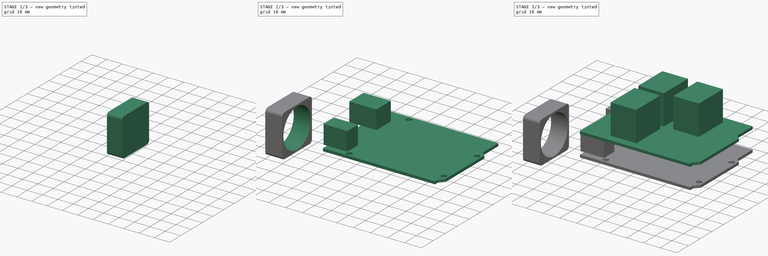
[diagram: build sequence overview — one tinted view per stage of 3, left to right]
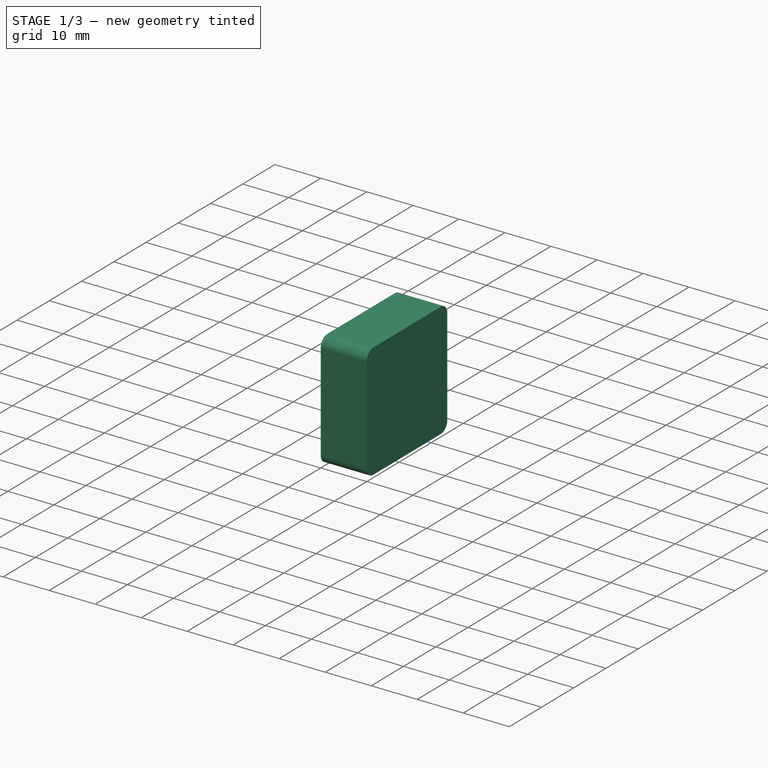
[diagram: stage 1 of 3 — iso view after this stage's code; geometry added in this stage tinted green]
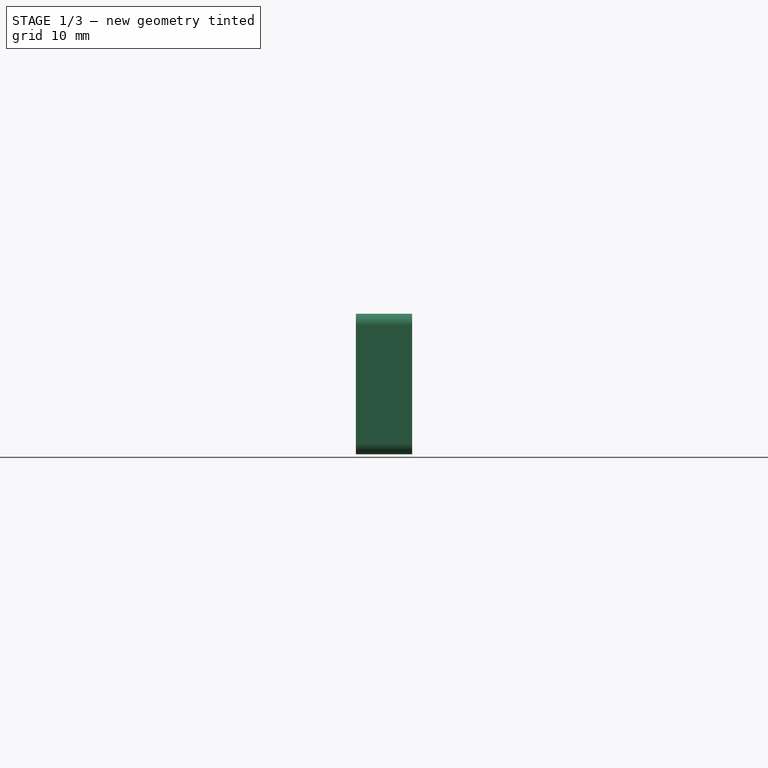
[diagram: stage 1 of 3 — front view after this stage's code; geometry added in this stage tinted green]
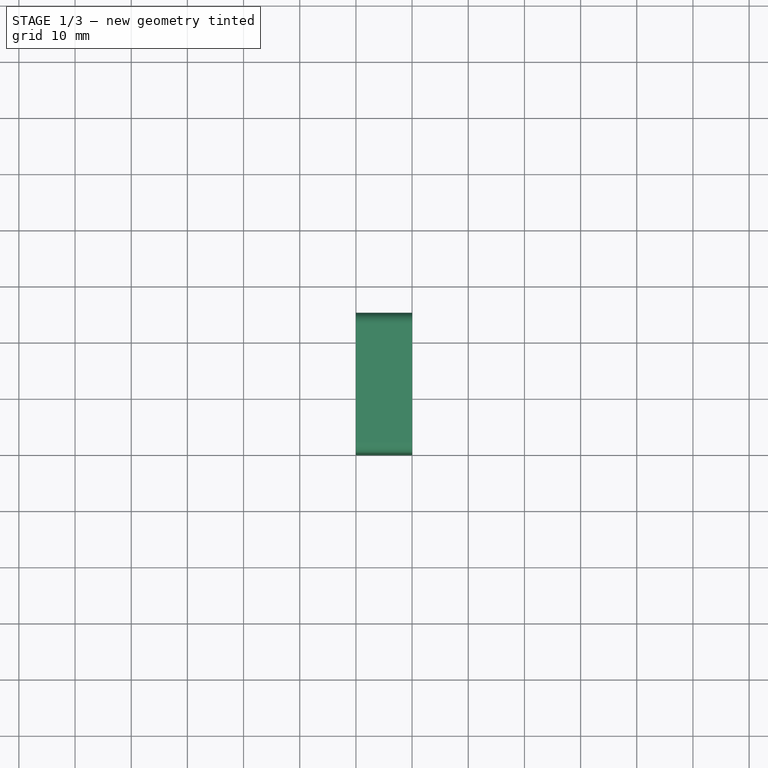
[diagram: stage 1 of 3 — top view after this stage's code; geometry added in this stage tinted green]
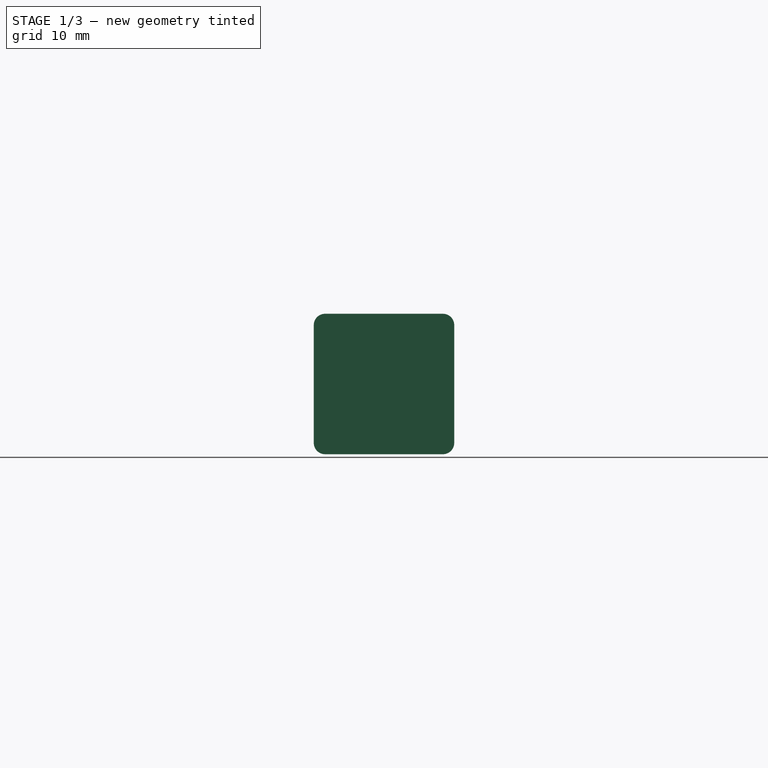
[diagram: stage 1 of 3 — right view after this stage's code; geometry added in this stage tinted green]
FCSTD DOCUMENT  (FreeCAD 1.0R39319 (Git))
Label: Utils
License: All rights reserved
LicenseURL: https://en.wikipedia.org/wiki/All_rights_reserved
objects: Sketcher::SketchObject×6, PartDesign::Pad×5, PartDesign::Body×2, PartDesign::Fillet×1, PartDesign::Pocket×1
note: 35 computed .brp shape members not serialized (recipe doc carries the construction recipe); baked Part::Feature solids carry a one-line shape summary decoded from their .brp

FEATURE [PartDesign::Body] Body  label="Board"
  AllowCompound = false
  Group = -> [Sketch,Pad,Sketch001,Pad001,Sketch002,Pad002,Sketch003,Pad003]
  Origin = -> Origin
  Tip = -> Pad003
FEATURE [Sketcher::SketchObject] Sketch004  label="Fan_frame_sketch"
  ArcFitTolerance = 1e-06
  AttachmentSupport = -> [YZ_Plane001]
  FullyConstrained = true
  MakeInternals = false
  MapMode = 5
  Placement = pos=(0,0,0) rot=(0.57735,0.57735,0.57735;2.0944rad)
  sketch-geometry (4):
    g0: LineSegment StartX=0 StartY=0 StartZ=0 EndX=25 EndY=0 EndZ=0
    g1: LineSegment StartX=25 StartY=0 StartZ=0 EndX=25 EndY=25 EndZ=0
    g2: LineSegment StartX=25 StartY=25 StartZ=0 EndX=0 EndY=25 EndZ=0
    g3: LineSegment StartX=0 StartY=25 StartZ=0 EndX=0 EndY=0 EndZ=0
  constraints (11):
    c: Coincident(g0,g1)
    c: Coincident(g1,g2)
    c: Coincident(g2,g3)
    c: Coincident(g3,g0)
    c: Horizontal(g0)
    c: Horizontal(g2)
    c: Vertical(g1)
    c: Vertical(g3)
    c: Coincident(g0,g-1)
    c: Distance(g2) = 25
    c: Distance(g3) = 25
FEATURE [PartDesign::Pad] Pad004  label="Fan_frame"
  Direction = (1,0,0)
  Length = 10
  Length2 = 10
  Placement = pos=(0,0,0) rot=(1,1,1;2.0944rad)
  Profile = -> Sketch004
  ReferenceAxis = -> Sketch004 [N_Axis]
  Refine = true
  Suppressed = false
  Type = 0
FEATURE [PartDesign::Fillet] Fillet  label="Fan_corner_fillets"
  Base = -> Pad004 [Edge8,Edge5,Edge1,Edge2]
  BaseFeature = -> Pad004
  Placement = pos=(0,0,0) rot=(1,1,1;2.0944rad)
  Radius = 2
  Refine = true
  SupportTransform = false
  Suppressed = false
  UseAllEdges = false
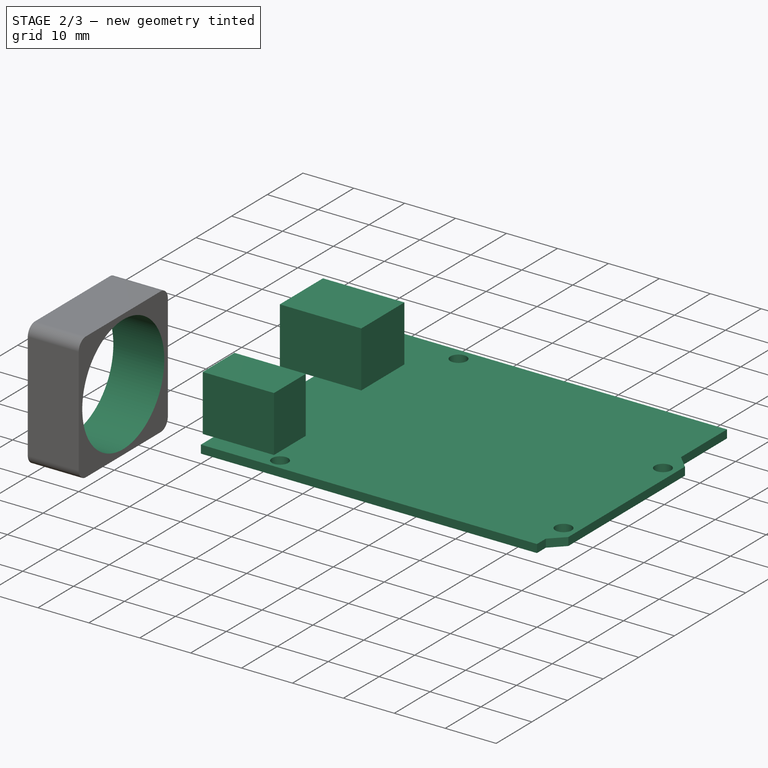
[diagram: stage 2 of 3 — iso view after this stage's code; geometry added in this stage tinted green]
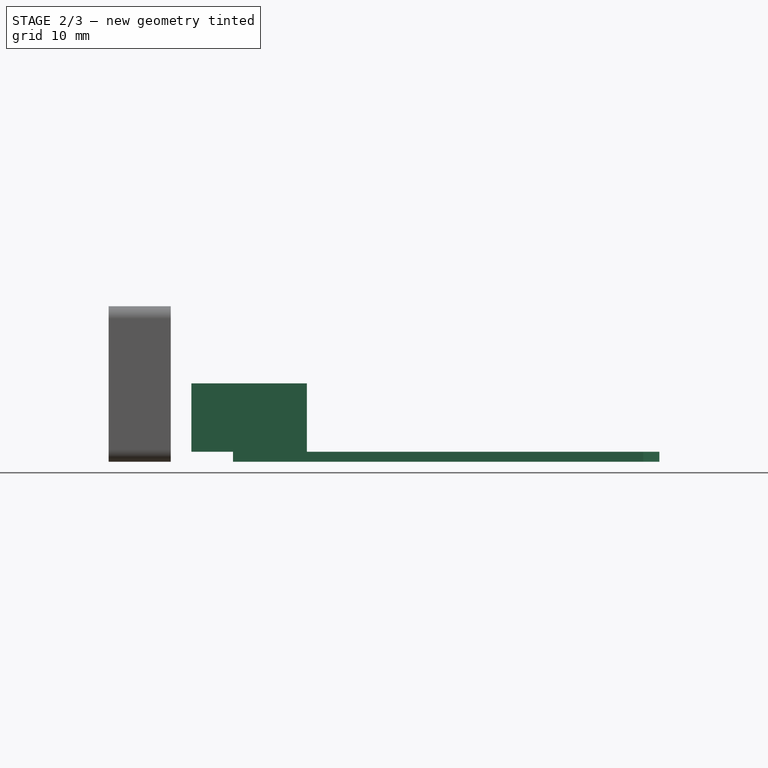
[diagram: stage 2 of 3 — front view after this stage's code; geometry added in this stage tinted green]
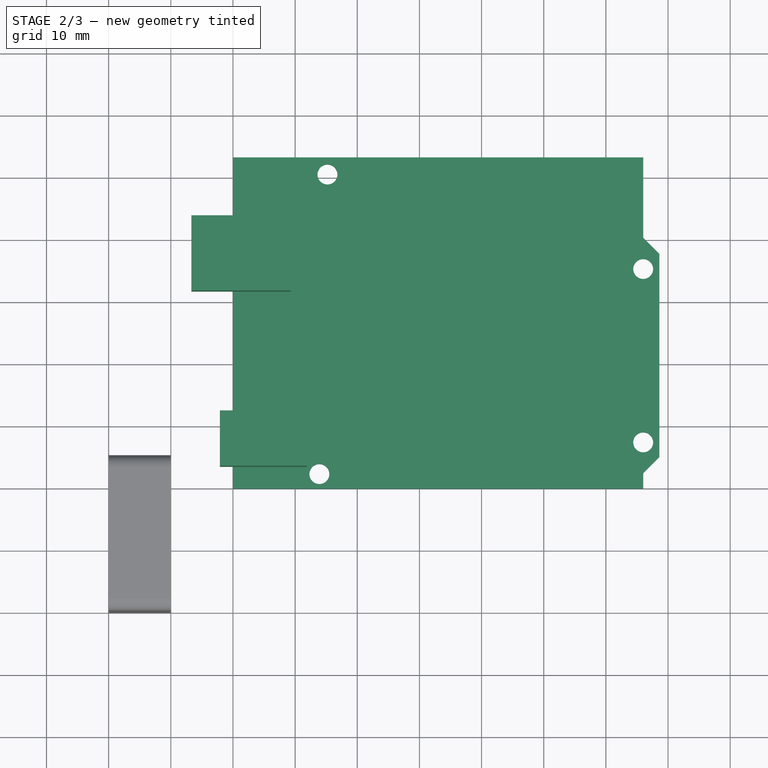
[diagram: stage 2 of 3 — top view after this stage's code; geometry added in this stage tinted green]
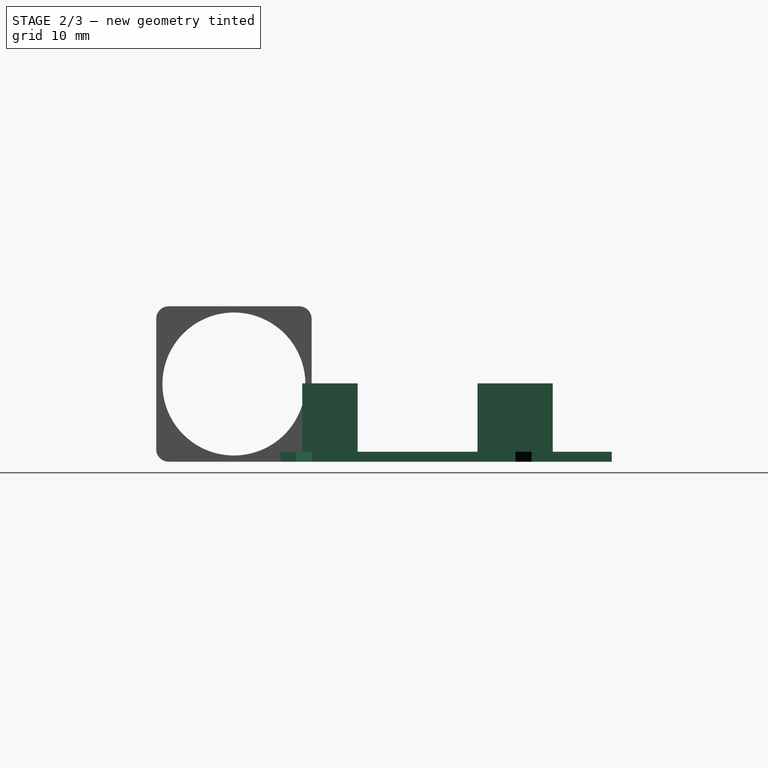
[diagram: stage 2 of 3 — right view after this stage's code; geometry added in this stage tinted green]
FEATURE [Sketcher::SketchObject] Sketch  label="Board_arduino_pcb_sketch"
  ArcFitTolerance = 1e-06
  AttachmentSupport = -> [XY_Plane]
  FullyConstrained = true
  MakeInternals = false
  MapMode = 5
  expr: Constraints[22] = .Constraints.Offset
  expr: Constraints[27] = .Constraints.Diameter
  expr: Constraints[28] = .Constraints.Diameter
  expr: Constraints[29] = .Constraints.Diameter
  sketch-geometry (12):
    g0: LineSegment StartX=20 StartY=73.3 StartZ=0 EndX=20 EndY=20 EndZ=0
    g1: LineSegment StartX=20 StartY=20 StartZ=0 EndX=86 EndY=20 EndZ=0
    g2: LineSegment StartX=86 StartY=20 StartZ=0 EndX=86 EndY=22.5 EndZ=0
    g3: LineSegment StartX=86 StartY=22.5 StartZ=0 EndX=88.6 EndY=25.1 EndZ=0
    g4: LineSegment StartX=88.6 StartY=25.1 StartZ=0 EndX=88.6 EndY=57.8 EndZ=0
    g5: LineSegment StartX=88.6 StartY=57.8 StartZ=0 EndX=86 EndY=60.4 EndZ=0
    g6: LineSegment StartX=86 StartY=60.4 StartZ=0 EndX=86 EndY=73.3 EndZ=0
    g7: LineSegment StartX=86 StartY=73.3 StartZ=0 EndX=20 EndY=73.3 EndZ=0
    g8: Circle CenterX=33.9 CenterY=22.35 CenterZ=0 NormalX=0 NormalY=0 NormalZ=1 AngleXU=0 Radius=1.6
    g9: Circle CenterX=86 CenterY=27.45 CenterZ=0 NormalX=0 NormalY=0 NormalZ=1 AngleXU=0 Radius=1.6
    g10: Circle CenterX=86 CenterY=55.35 CenterZ=0 NormalX=0 NormalY=0 NormalZ=1 AngleXU=0 Radius=1.6
    g11: Circle CenterX=35.2 CenterY=70.55 CenterZ=0 NormalX=0 NormalY=0 NormalZ=1 AngleXU=0 Radius=1.6
  constraints (36):
    c: Vertical(g0)
    c: Coincident(g1,g0)
    c: Horizontal(g1)
    c: Coincident(g2,g1)
    c: Vertical(g2)
    c: Coincident(g3,g2)
    c: Coincident(g4,g3)
    c: Vertical(g4)
    c: Coincident(g5,g4)
    c: Coincident(g6,g5)
    c: Coincident(g7,g6)
    c: Coincident(g7,g0)
    c: Horizontal(g7)
    c: Vertical(g6)
    c: PointOnObject(g5,g2)
    c: Distance(g0) = 53.3  'Height'
    c: Angle(g3,g1) = 2.35619
    c: Perpendicular(g3,g5)
    c: Distance(g7) = 66  'Short_length'
    c: Distance(g4,g0) = 68.6  'Long_length'
    c: Distance(g2) = 2.5  'Corner_distance'
    c: Distance(g4) = 32.7  'Flap_distance'
    c: DistanceX(g-2,g0) = 20
    c: DistanceY(g-1,g0) = 20  'Offset'
    c: PointOnObject(g9,g2)
    c: PointOnObject(g10,g6)
    c: Diameter(g8) = 3.2  'Diameter'
    c: Diameter(g9) = 3.2
    c: Diameter(g10) = 3.2
    c: Diameter(g11) = 3.2
    c: DistanceY(g9,g10) = 27.9
    c: DistanceY(g8,g9) = 5.1
    c: DistanceY(g10,g11) = 15.2
    c: DistanceX(g8,g11) = 1.3
    c: Distance(g11,g7) = 2.75
    c: DistanceX(g11,g10) = 50.8
FEATURE [PartDesign::Pad] Pad  label="Board_arduino_pcb"
  Direction = (0,0,1)
  Length = 1.6
  Length2 = 10
  Profile = -> Sketch
  ReferenceAxis = -> Sketch [N_Axis]
  Refine = true
  Suppressed = false
  Type = 0
FEATURE [Sketcher::SketchObject] Sketch001  label="Board_arduino_connectors_sketch"
  ArcFitTolerance = 1e-06
  AttachmentSupport = -> [Pad]
  FullyConstrained = true
  MakeInternals = false
  MapMode = 5
  Placement = pos=(0,0,1.6) rot=(0,0,1;0rad)
  expr: Constraints[28] = <<Board_arduino_pcb_sketch>>.Constraints.Offset
  expr: Constraints[29] = <<Board_arduino_pcb_sketch>>.Constraints.Offset
  expr: Constraints[30] = <<Board_arduino_pcb_sketch>>.Constraints.Long_length
  expr: Constraints[31] = <<Board_arduino_pcb_sketch>>.Constraints.Height
  sketch-geometry (12):
    g0: LineSegment StartX=17.9 StartY=32.4 StartZ=0 EndX=17.9 EndY=23.5 EndZ=0
    g1: LineSegment StartX=17.9 StartY=23.5 StartZ=0 EndX=31.9 EndY=23.5 EndZ=0
    g2: LineSegment StartX=31.9 StartY=23.5 StartZ=0 EndX=31.9 EndY=32.4 EndZ=0
    g3: LineSegment StartX=31.9 StartY=32.4 StartZ=0 EndX=17.9 EndY=32.4 EndZ=0
    g4: LineSegment StartX=13.3 StartY=63.8 StartZ=0 EndX=13.3 EndY=51.7 EndZ=0
    g5: LineSegment StartX=13.3 StartY=51.7 StartZ=0 EndX=29.3 EndY=51.7 EndZ=0
    g6: LineSegment StartX=29.3 StartY=51.7 StartZ=0 EndX=29.3 EndY=63.8 EndZ=0
    g7: LineSegment StartX=29.3 StartY=63.8 StartZ=0 EndX=13.3 EndY=63.8 EndZ=0
    g8: LineSegment [constr] StartX=20 StartY=73.3 StartZ=0 EndX=20 EndY=20 EndZ=0
    g9: LineSegment [constr] StartX=20 StartY=20 StartZ=0 EndX=88.6 EndY=20 EndZ=0
    g10: LineSegment [constr] StartX=88.6 StartY=20 StartZ=0 EndX=88.6 EndY=73.3 EndZ=0
    g11: LineSegment [constr] StartX=88.6 StartY=73.3 StartZ=0 EndX=20 EndY=73.3 EndZ=0
  constraints (36):
    c: Coincident(g0,g1)
    c: Coincident(g1,g2)
    c: Coincident(g2,g3)
    c: Coincident(g3,g0)
    c: Vertical(g0)
    c: Vertical(g2)
    c: Horizontal(g1)
    c: Horizontal(g3)
    c: Coincident(g4,g5)
    c: Coincident(g5,g6)
    c: Coincident(g6,g7)
    c: Coincident(g7,g4)
    c: Vertical(g4)
    c: Vertical(g6)
    c: Horizontal(g5)
    c: Horizontal(g7)
    c: Distance(g3) = 14
    c: Distance(g0) = 8.9
    c: Distance(g4) = 12.1
    c: Distance(g7) = 16
    c: Coincident(g8,g9)
    c: Coincident(g9,g10)
    c: Coincident(g10,g11)
    c: Coincident(g11,g8)
    c: Vertical(g8)
    c: Vertical(g10)
    c: Horizontal(g9)
    c: Horizontal(g11)
    c: DistanceX(g-2,g8) = 20
    c: DistanceY(g-1,g8) = 20
    c: Distance(g9) = 68.6
    c: Distance(g10) = 53.3
    c: DistanceX(g4,g8) = 6.7
    c: DistanceX(g0,g8) = 2.1
    c: DistanceY(g4,g8) = 9.5
    c: DistanceY(g8,g0) = 3.5
FEATURE [PartDesign::Pad] Pad001  label="Board_arduino_connectors"
  BaseFeature = -> Pad
  Direction = (0,0,1)
  Length = 11
  Length2 = 10
  Profile = -> Sketch001
  ReferenceAxis = -> Sketch001 [N_Axis]
  Refine = true
  Suppressed = false
  Type = 0
FEATURE [Sketcher::SketchObject] Sketch006  label="Fan_center_hole_sketch"
  ArcFitTolerance = 1e-06
  AttachmentSupport = -> [Fillet]
  FullyConstrained = true
  MakeInternals = false
  MapMode = 5
  Placement = pos=(10,0,0) rot=(0.57735,0.57735,0.57735;2.0944rad)
  sketch-geometry (1):
    g0: Circle CenterX=12.5 CenterY=12.5 CenterZ=0 NormalX=0 NormalY=0 NormalZ=1 AngleXU=0 Radius=11.5
  constraints (3):
    c: Diameter(g0) = 23
    c: DistanceY(g-1,g0) = 12.5
    c: DistanceX(g-2,g0) = 12.5
FEATURE [PartDesign::Pocket] Pocket  label="Fan_center_hole"
  BaseFeature = -> Fillet
  Direction = (-1,0,0)
  Length = 5
  Length2 = 5
  Placement = pos=(0,0,0) rot=(1,1,1;2.0944rad)
  Profile = -> Sketch006
  ReferenceAxis = -> Sketch006 [N_Axis]
  Refine = true
  Suppressed = false
  Type = 1
FEATURE [PartDesign::Body] Body001  label="Fan"
  AllowCompound = false
  Group = -> [Sketch004,Pad004,Fillet,Sketch006,Pocket]
  Origin = -> Origin001
  Tip = -> Pocket
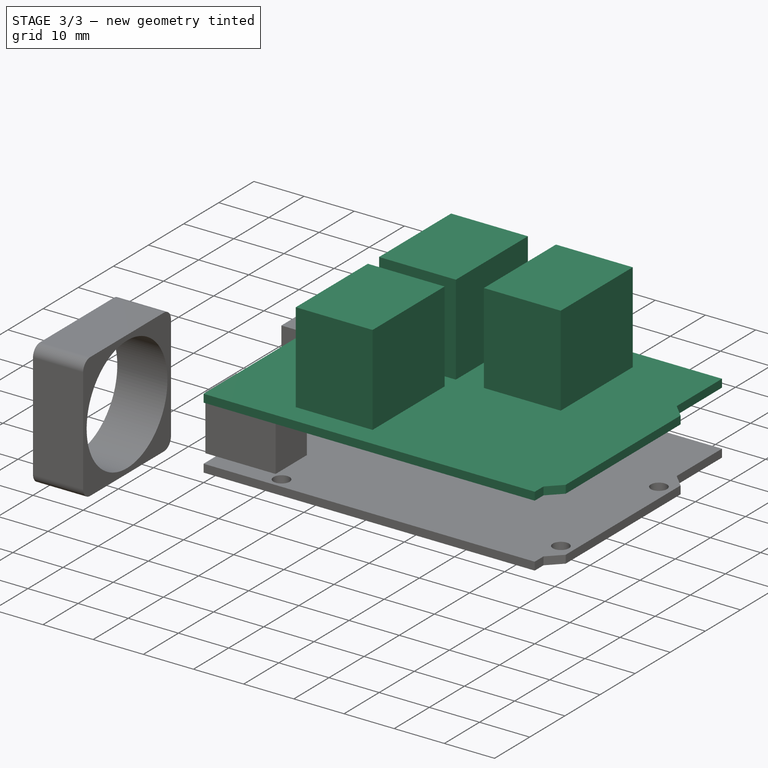
[diagram: stage 3 of 3 — iso view after this stage's code; geometry added in this stage tinted green]
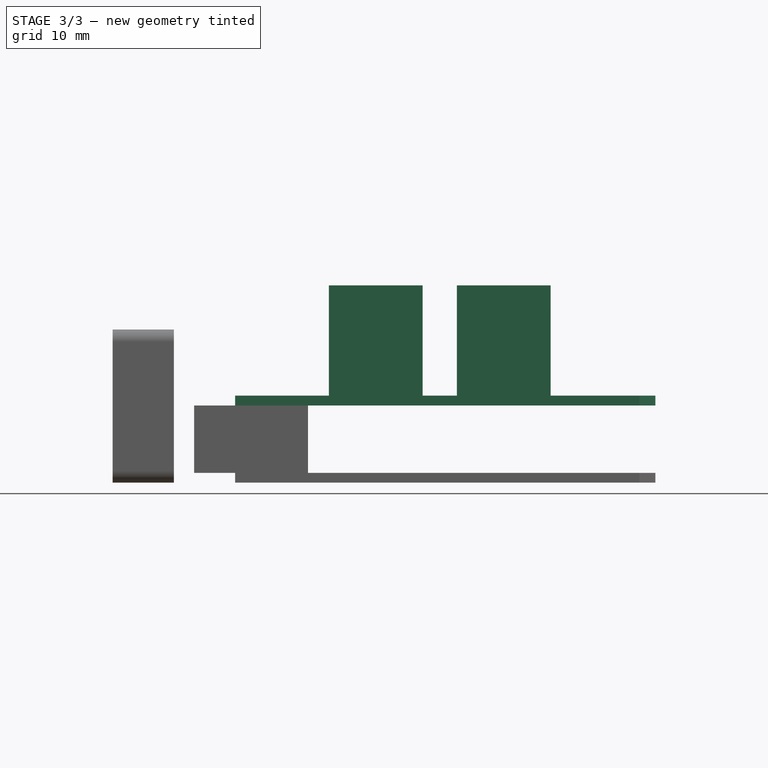
[diagram: stage 3 of 3 — front view after this stage's code; geometry added in this stage tinted green]
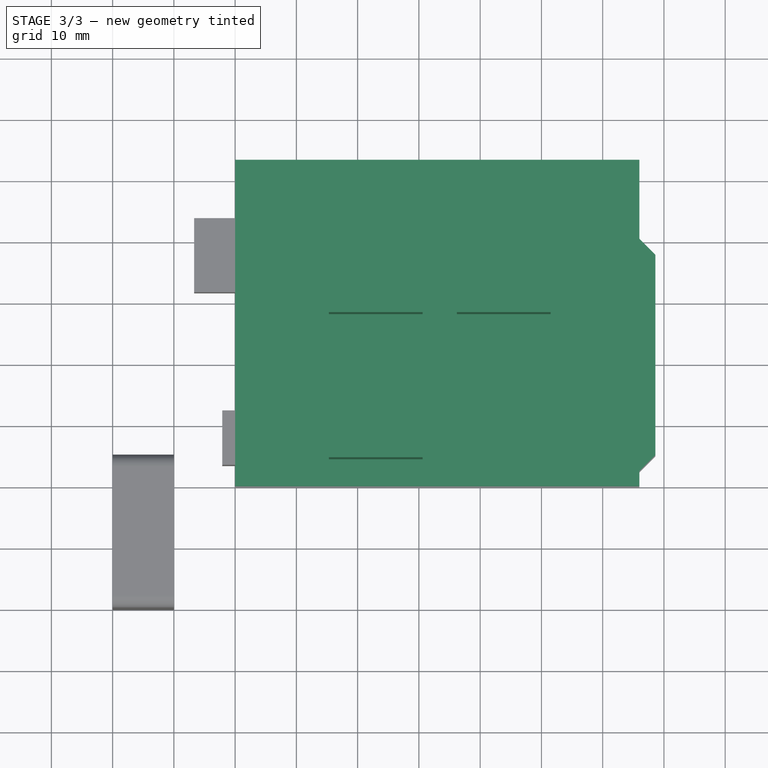
[diagram: stage 3 of 3 — top view after this stage's code; geometry added in this stage tinted green]
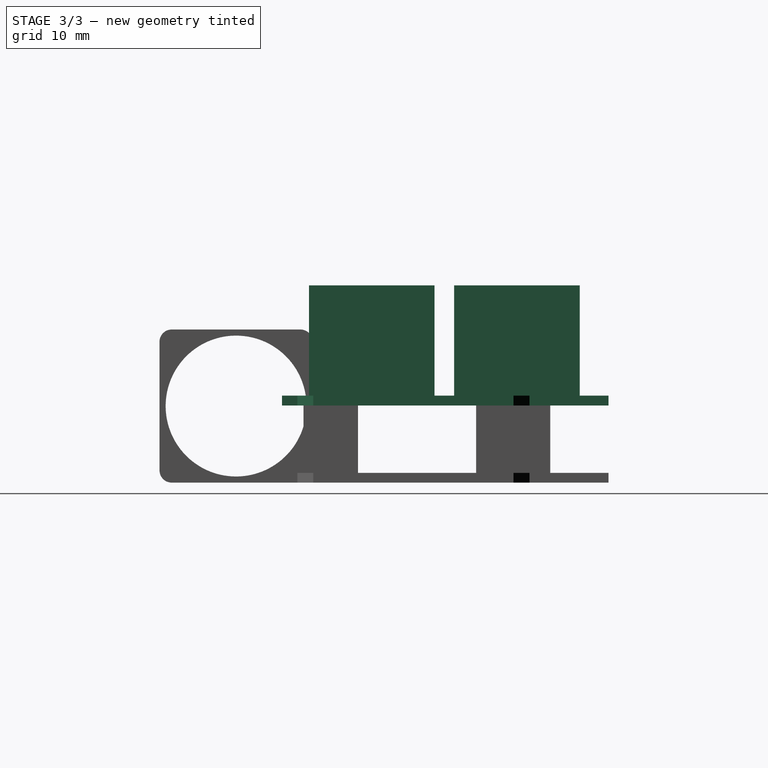
[diagram: stage 3 of 3 — right view after this stage's code; geometry added in this stage tinted green]
FEATURE [Sketcher::SketchObject] Sketch002  label="Shield_pcb_sketch"
  ArcFitTolerance = 1e-06
  AttachmentSupport = -> [Pad001]
  FullyConstrained = true
  MakeInternals = false
  MapMode = 5
  Placement = pos=(0,0,12.6) rot=(0,0,1;0rad)
  expr: Constraints[17] = <<Board_arduino_pcb_sketch>>.Constraints.Offset
  expr: Constraints[18] = <<Board_arduino_pcb_sketch>>.Constraints.Offset
  expr: Constraints[19] = <<Board_arduino_pcb_sketch>>.Constraints.Height
  expr: Constraints[20] = <<Board_arduino_pcb_sketch>>.Constraints.Short_length
  expr: Constraints[21] = <<Board_arduino_pcb_sketch>>.Constraints.Long_length
  expr: Constraints[22] = <<Board_arduino_pcb_sketch>>.Constraints.Corner_distance
  expr: Constraints[23] = <<Board_arduino_pcb_sketch>>.Constraints.Flap_distance
  sketch-geometry (8):
    g0: LineSegment StartX=20 StartY=73.3 StartZ=0 EndX=20 EndY=20 EndZ=0
    g1: LineSegment StartX=20 StartY=20 StartZ=0 EndX=86 EndY=20 EndZ=0
    g2: LineSegment StartX=86 StartY=20 StartZ=0 EndX=86 EndY=22.5 EndZ=0
    g3: LineSegment StartX=86 StartY=22.5 StartZ=0 EndX=88.6 EndY=25.1 EndZ=0
    g4: LineSegment StartX=88.6 StartY=25.1 StartZ=0 EndX=88.6 EndY=57.8 EndZ=0
    g5: LineSegment StartX=88.6 StartY=57.8 StartZ=0 EndX=86 EndY=60.4 EndZ=0
    g6: LineSegment StartX=86 StartY=60.4 StartZ=0 EndX=86 EndY=73.3 EndZ=0
    g7: LineSegment StartX=86 StartY=73.3 StartZ=0 EndX=20 EndY=73.3 EndZ=0
  constraints (24):
    c: Vertical(g0)
    c: Coincident(g1,g0)
    c: Horizontal(g1)
    c: Coincident(g2,g1)
    c: Coincident(g3,g2)
    c: Coincident(g4,g3)
    c: Vertical(g4)
    c: Coincident(g5,g4)
    c: Coincident(g6,g5)
    c: Vertical(g6)
    c: Coincident(g7,g6)
    c: Coincident(g7,g0)
    c: Horizontal(g7)
    c: Vertical(g2)
    c: Angle(g3,g1) = 2.35619
    c: Perpendicular(g3,g5)
    c: PointOnObject(g5,g2)
    c: DistanceX(g-2,g0) = 20
    c: DistanceY(g-1,g0) = 20
    c: Distance(g0) = 53.3
    c: Distance(g7) = 66
    c: Distance(g4,g0) = 68.6
    c: Distance(g2) = 2.5
    c: Distance(g4) = 32.7
FEATURE [PartDesign::Pad] Pad002  label="Board_shield_pcb"
  BaseFeature = -> Pad001
  Direction = (0,0,1)
  Length = 1.6
  Length2 = 10
  Profile = -> Sketch002
  ReferenceAxis = -> Sketch002 [N_Axis]
  Refine = true
  Suppressed = false
  Type = 0
FEATURE [Sketcher::SketchObject] Sketch003  label="Board_shield_steppers_sketch"
  ArcFitTolerance = 1e-06
  AttachmentSupport = -> [Pad002]
  FullyConstrained = true
  MakeInternals = false
  MapMode = 5
  Placement = pos=(0,0,14.2) rot=(0,0,1;0rad)
  expr: Constraints[30] = .Constraints.Width
  expr: Constraints[31] = .Constraints.Height
  expr: Constraints[40] = <<Board_arduino_pcb_sketch>>.Constraints.Offset
  expr: Constraints[41] = <<Board_arduino_pcb_sketch>>.Constraints.Offset
  expr: Constraints[42] = <<Board_arduino_pcb_sketch>>.Constraints.Height
  expr: Constraints[43] = <<Board_arduino_pcb_sketch>>.Constraints.Long_length
  sketch-geometry (16):
    g0: LineSegment StartX=35.3 StartY=68.6 StartZ=0 EndX=35.3 EndY=48.1 EndZ=0
    g1: LineSegment StartX=35.3 StartY=48.1 StartZ=0 EndX=50.6 EndY=48.1 EndZ=0
    g2: LineSegment StartX=50.6 StartY=48.1 StartZ=0 EndX=50.6 EndY=68.6 EndZ=0
    g3: LineSegment StartX=50.6 StartY=68.6 StartZ=0 EndX=35.3 EndY=68.6 EndZ=0
    g4: LineSegment StartX=56.2 StartY=68.6 StartZ=0 EndX=56.2 EndY=48.1 EndZ=0
    g5: LineSegment StartX=56.2 StartY=48.1 StartZ=0 EndX=71.5 EndY=48.1 EndZ=0
    g6: LineSegment StartX=71.5 StartY=48.1 StartZ=0 EndX=71.5 EndY=68.6 EndZ=0
    g7: LineSegment StartX=71.5 StartY=68.6 StartZ=0 EndX=56.2 EndY=68.6 EndZ=0
    g8: LineSegment StartX=35.3 StartY=44.9 StartZ=0 EndX=35.3 EndY=24.4 EndZ=0
    g9: LineSegment StartX=35.3 StartY=24.4 StartZ=0 EndX=50.6 EndY=24.4 EndZ=0
    g10: LineSegment StartX=50.6 StartY=24.4 StartZ=0 EndX=50.6 EndY=44.9 EndZ=0
    g11: LineSegment StartX=50.6 StartY=44.9 StartZ=0 EndX=35.3 EndY=44.9 EndZ=0
    g12: LineSegment [constr] StartX=20 StartY=73.3 StartZ=0 EndX=20 EndY=20 EndZ=0
    g13: LineSegment [constr] StartX=20 StartY=20 StartZ=0 EndX=88.6 EndY=20 EndZ=0
    g14: LineSegment [constr] StartX=88.6 StartY=20 StartZ=0 EndX=88.6 EndY=73.3 EndZ=0
    g15: LineSegment [constr] StartX=88.6 StartY=73.3 StartZ=0 EndX=20 EndY=73.3 EndZ=0
  constraints (48):
    c: Coincident(g0,g1)
    c: Coincident(g1,g2)
    c: Coincident(g2,g3)
    c: Coincident(g3,g0)
    c: Vertical(g0)
    c: Vertical(g2)
    c: Horizontal(g1)
    c: Horizontal(g3)
    c: Coincident(g4,g5)
    c: Coincident(g5,g6)
    c: Coincident(g6,g7)
    c: Coincident(g7,g4)
    c: Vertical(g4)
    c: Vertical(g6)
    c: Horizontal(g5)
    c: Horizontal(g7)
    c: Coincident(g8,g9)
    c: Coincident(g9,g10)
    c: Coincident(g10,g11)
    c: Coincident(g11,g8)
    c: Vertical(g8)
    c: Vertical(g10)
    c: Horizontal(g9)
    c: Horizontal(g11)
    c: PointOnObject(g8,g0)
    c: PointOnObject(g10,g2)
    c: PointOnObject(g4,g1)
    c: PointOnObject(g4,g3)
    c: Distance(g3) = 15.3  'Width'
    c: Distance(g0) = 20.5  'Height'
    c: Distance(g7) = 15.3
    c: Distance(g10) = 20.5
    c: Coincident(g12,g13)
    c: Coincident(g13,g14)
    c: Coincident(g14,g15)
    c: Coincident(g15,g12)
    c: Vertical(g12)
    c: Vertical(g14)
    c: Horizontal(g13)
    c: Horizontal(g15)
    c: DistanceX(g-2,g12) = 20
    c: DistanceY(g-1,g12) = 20
    c: Distance(g12) = 53.3
    c: Distance(g15) = 68.6
    c: Distance(g0,g12) = 15.3
    c: Distance(g2,g4) = 5.6
    c: Distance(g10,g1) = 3.2
    c: Distance(g0,g15) = 4.7
FEATURE [PartDesign::Pad] Pad003  label="Board_shield_steppers"
  BaseFeature = -> Pad002
  Direction = (0,0,1)
  Length = 18
  Length2 = 10
  Profile = -> Sketch003
  ReferenceAxis = -> Sketch003 [N_Axis]
  Refine = true
  Suppressed = false
  Type = 0
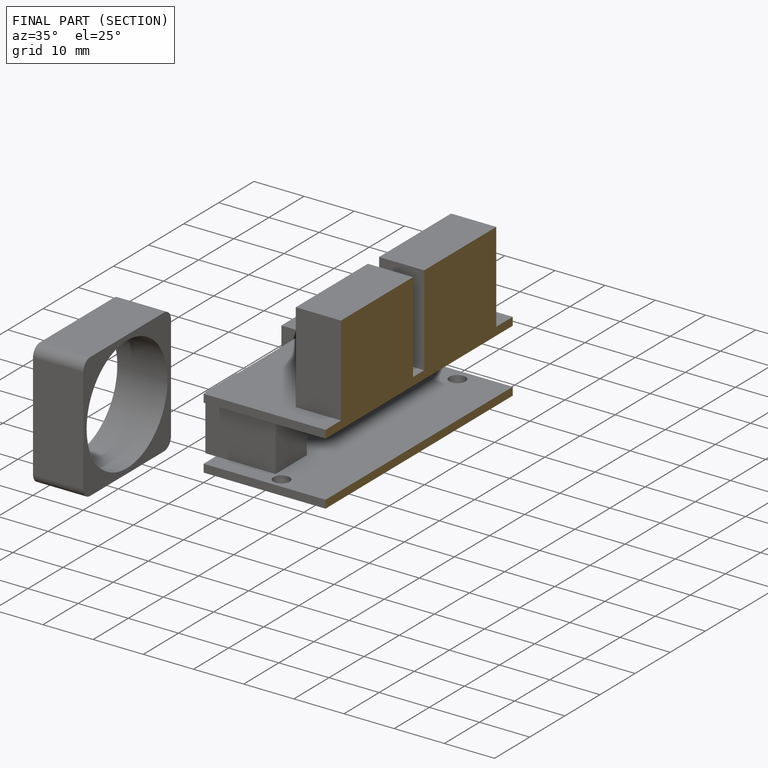
[diagram: finished part — half-section view (interior)]
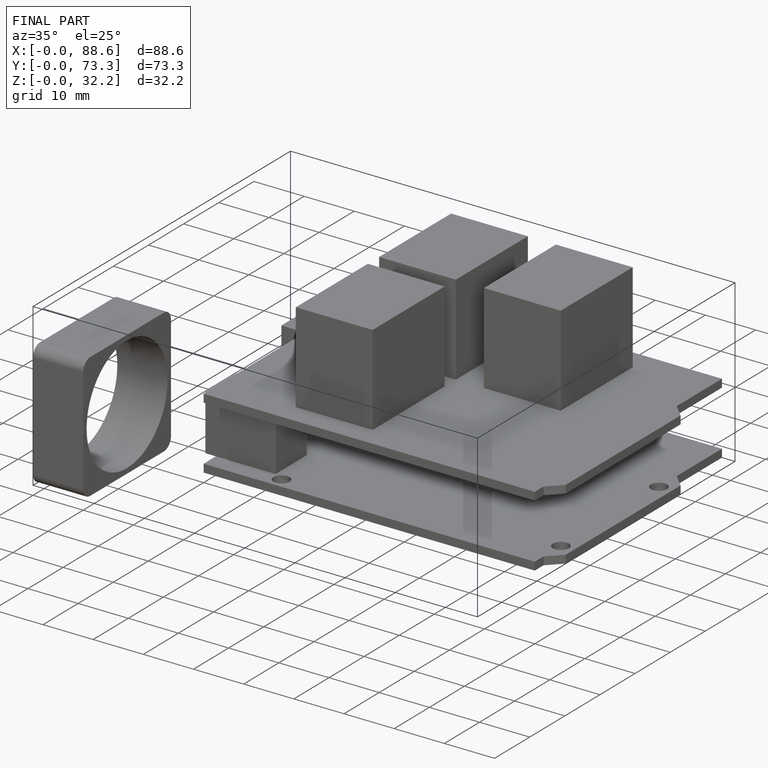
[diagram: finished part — iso view with bounding-box wireframe]
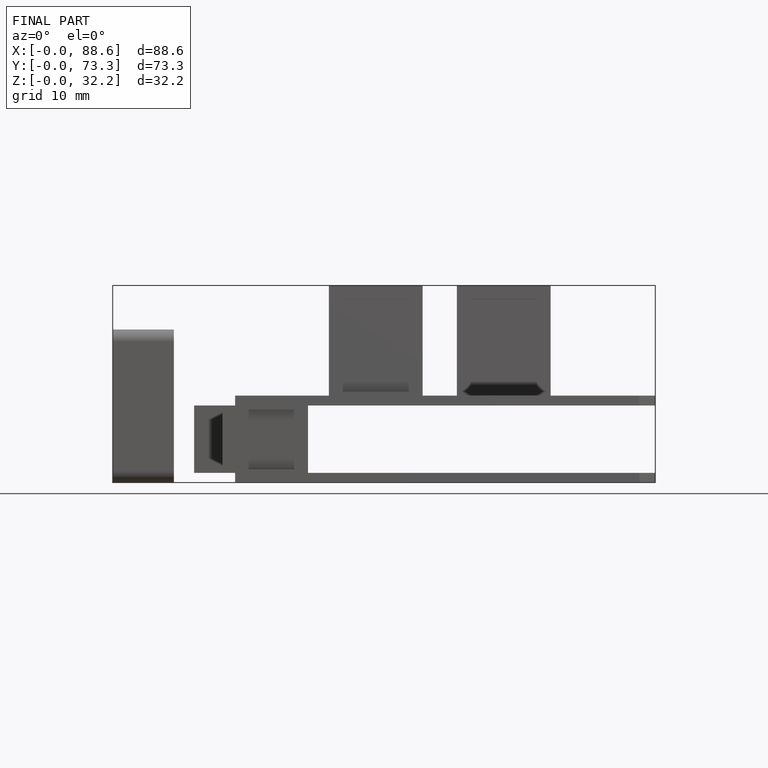
[diagram: finished part — front view with bounding-box wireframe]
